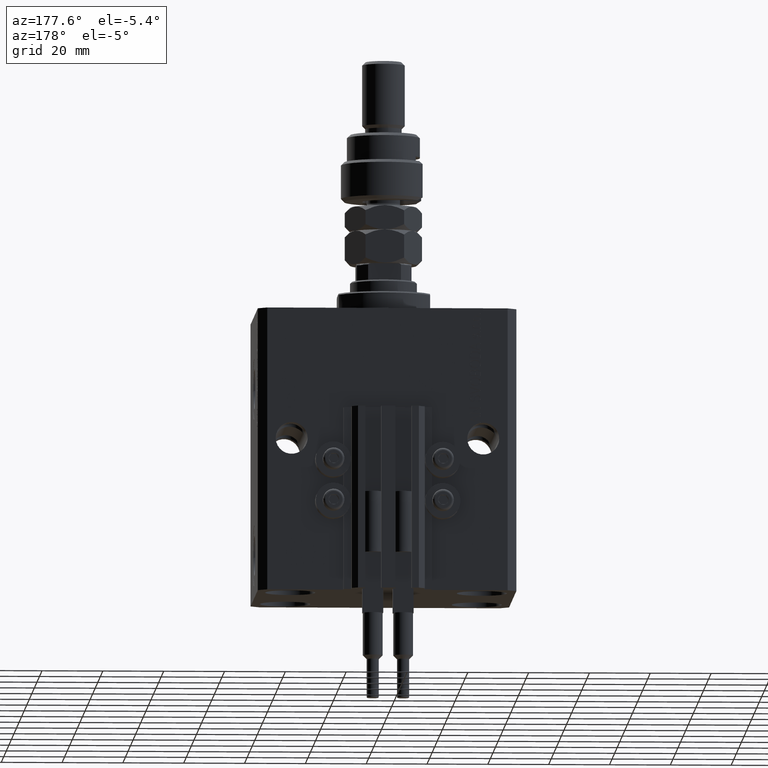
[diagram: clean part render]
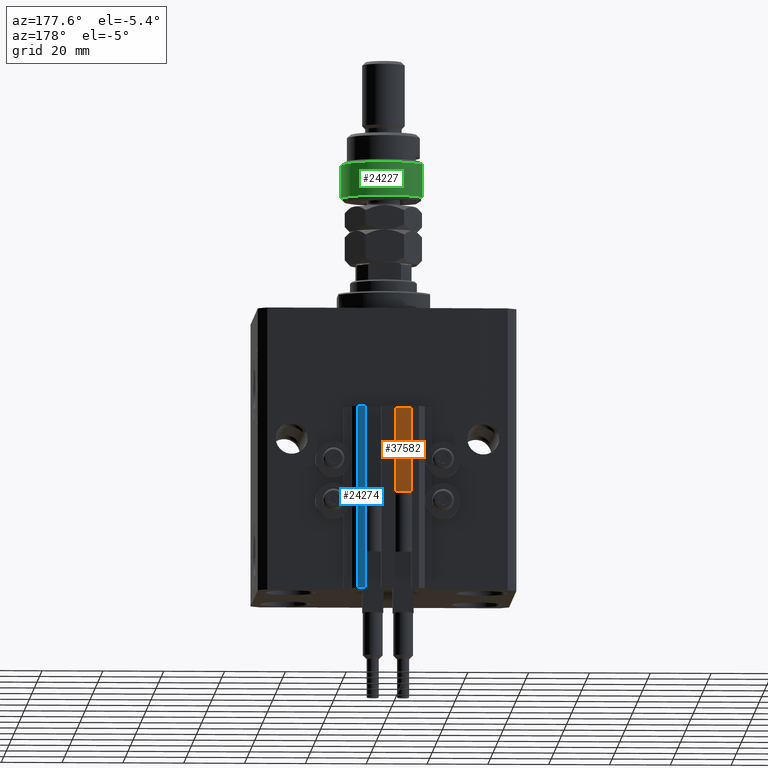
[diagram: same view with three faces highlighted in distinct colors, each labeled with its STEP entity id]
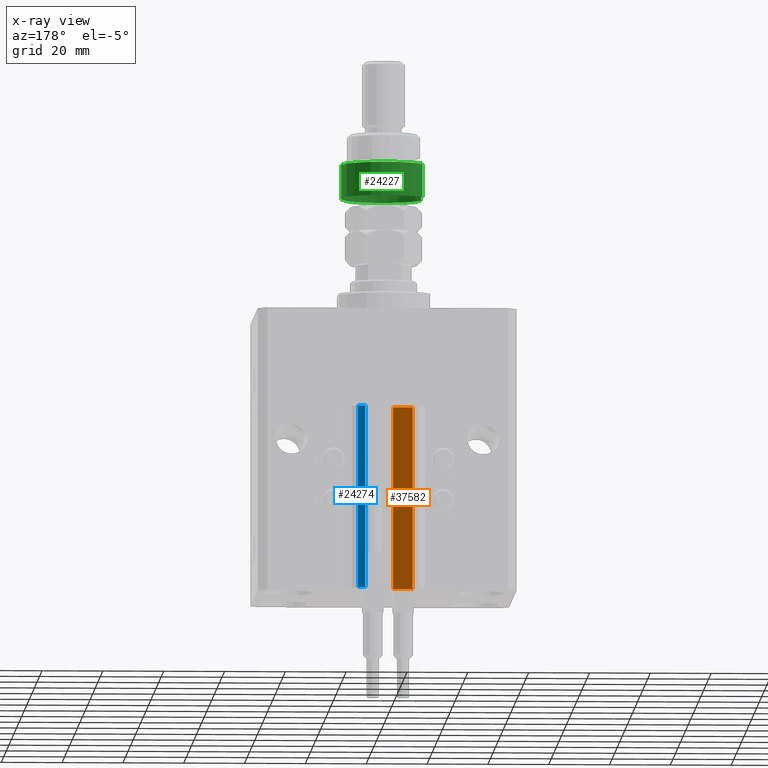
[diagram: x-ray of the same camera — body ghosted, the three highlighted faces saturated]
A machine part, auxiliary view with three faces highlighted in distinct colors.
The next image is the same camera in x-ray (body ghosted, the three faces saturated) — at least one of them is partly hidden behind the body in this view.
Their STEP definitions:

[orange] entity #37582 — the highlighted planar face has unit normal (0, 1, 0).
#1496 = AXIS2_PLACEMENT_3D ( 'NONE', #6518, #37375, #30126 ) ;
#1789 = DIRECTION ( 'NONE',  ( -1.000000000000000000, 0.000000000000000000, 0.000000000000000000 ) ) ;
#2334 = CARTESIAN_POINT ( 'NONE',  ( -1.800000000000000933, 33.50000000000000000, -93.00000000000000000 ) ) ;
#3066 = EDGE_CURVE ( 'NONE', #34076, #40881, #9385, .T. ) ;
#4939 = DIRECTION ( 'NONE',  ( 0.000000000000000000, 0.000000000000000000, 1.000000000000000000 ) ) ;
#6421 = CARTESIAN_POINT ( 'NONE',  ( -8.199999999999997513, 33.50000000000000000, -93.00000000000000000 ) ) ;
#6518 = CARTESIAN_POINT ( 'NONE',  ( -1.800000000000000933, 33.50000000000000000, -93.00000000000000000 ) ) ;
#7128 = VERTEX_POINT ( 'NONE', #40835 ) ;
#9385 = LINE ( 'NONE', #13268, #18986 ) ;
#10239 = ORIENTED_EDGE ( 'NONE', *, *, #42551, .F. ) ;
#13268 = CARTESIAN_POINT ( 'NONE',  ( -8.199999999999997513, 33.50000000000000000, -93.00000000000000000 ) ) ;
#16114 = VECTOR ( 'NONE', #1789, 1000.000000000000000 ) ;
#16940 = ORIENTED_EDGE ( 'NONE', *, *, #3066, .T. ) ;
#17356 = LINE ( 'NONE', #33187, #39765 ) ;
#17410 = DIRECTION ( 'NONE',  ( 0.000000000000000000, 0.000000000000000000, 1.000000000000000000 ) ) ;
#17852 = EDGE_CURVE ( 'NONE', #20688, #34076, #41197, .T. ) ;
#18731 = ORIENTED_EDGE ( 'NONE', *, *, #20318, .F. ) ;
#18986 = VECTOR ( 'NONE', #17410, 1000.000000000000000 ) ;
#20318 = EDGE_CURVE ( 'NONE', #7128, #40881, #35608, .T. ) ;
#20688 = VERTEX_POINT ( 'NONE', #2334 ) ;
#21473 = CARTESIAN_POINT ( 'NONE',  ( -1.800000000000000933, 33.50000000000000000, -93.00000000000000000 ) ) ;
#21815 = PLANE ( 'NONE',  #1496 ) ;
#24524 = VECTOR ( 'NONE', #40007, 1000.000000000000000 ) ;
#27897 = EDGE_LOOP ( 'NONE', ( #18731, #10239, #33360, #16940 ) ) ;
#28353 = CARTESIAN_POINT ( 'NONE',  ( -1.800000000000000933, 33.50000000000000000, -33.00000000000000000 ) ) ;
#30126 = DIRECTION ( 'NONE',  ( 0.000000000000000000, 0.000000000000000000, 1.000000000000000000 ) ) ;
#31777 = CARTESIAN_POINT ( 'NONE',  ( -8.199999999999997513, 33.50000000000000000, -33.00000000000000000 ) ) ;
#33187 = CARTESIAN_POINT ( 'NONE',  ( -1.800000000000000933, 33.50000000000000000, -93.00000000000000000 ) ) ;
#33360 = ORIENTED_EDGE ( 'NONE', *, *, #17852, .T. ) ;
#34076 = VERTEX_POINT ( 'NONE', #6421 ) ;
#35608 = LINE ( 'NONE', #28353, #24524 ) ;
#37375 = DIRECTION ( 'NONE',  ( 0.000000000000000000, 1.000000000000000000, -0.000000000000000000 ) ) ;
#37582 = ADVANCED_FACE ( 'NONE', ( #45924 ), #21815, .T. ) ;
#39765 = VECTOR ( 'NONE', #4939, 1000.000000000000000 ) ;
#40007 = DIRECTION ( 'NONE',  ( -1.000000000000000000, 0.000000000000000000, 0.000000000000000000 ) ) ;
#40835 = CARTESIAN_POINT ( 'NONE',  ( -1.800000000000000933, 33.50000000000000000, -33.00000000000000000 ) ) ;
#40881 = VERTEX_POINT ( 'NONE', #31777 ) ;
#41197 = LINE ( 'NONE', #21473, #16114 ) ;
#42551 = EDGE_CURVE ( 'NONE', #20688, #7128, #17356, .T. ) ;
#45924 = FACE_OUTER_BOUND ( 'NONE', #27897, .T. ) ;

[blue] entity #24274 — the highlighted planar face has unit normal (0, 1, 0).
#253 = ORIENTED_EDGE ( 'NONE', *, *, #37932, .T. ) ;
#2000 = DIRECTION ( 'NONE',  ( 0.000000000000000000, 0.000000000000000000, 1.000000000000000000 ) ) ;
#6410 = DIRECTION ( 'NONE',  ( 0.000000000000000000, 1.000000000000000000, -0.000000000000000000 ) ) ;
#10793 = FACE_OUTER_BOUND ( 'NONE', #22896, .T. ) ;
#13451 = CARTESIAN_POINT ( 'NONE',  ( 7.649999999999998579, 39.50000000000002132, -93.00000000000000000 ) ) ;
#13652 = PLANE ( 'NONE',  #30362 ) ;
#13879 = CARTESIAN_POINT ( 'NONE',  ( 9.999999999999998224, 39.50000000000002132, -33.00000000000000000 ) ) ;
#15248 = EDGE_CURVE ( 'NONE', #20875, #38093, #37488, .T. ) ;
#16740 = CARTESIAN_POINT ( 'NONE',  ( 9.999999999999998224, 39.50000000000002132, -93.00000000000000000 ) ) ;
#19021 = LINE ( 'NONE', #22931, #35349 ) ;
#20875 = VERTEX_POINT ( 'NONE', #49190 ) ;
#21441 = EDGE_CURVE ( 'NONE', #24162, #20875, #19021, .T. ) ;
#22896 = EDGE_LOOP ( 'NONE', ( #44620, #45087, #24280, #253 ) ) ;
#22931 = CARTESIAN_POINT ( 'NONE',  ( 9.999999999999998224, 39.50000000000002132, -93.00000000000000000 ) ) ;
#23047 = VECTOR ( 'NONE', #49492, 1000.000000000000000 ) ;
#24162 = VERTEX_POINT ( 'NONE', #44781 ) ;
#24274 = ADVANCED_FACE ( 'NONE', ( #10793 ), #13652, .T. ) ;
#24280 = ORIENTED_EDGE ( 'NONE', *, *, #36857, .T. ) ;
#28473 = VECTOR ( 'NONE', #29727, 1000.000000000000000 ) ;
#28693 = DIRECTION ( 'NONE',  ( -1.000000000000000000, 0.000000000000000000, 0.000000000000000000 ) ) ;
#29727 = DIRECTION ( 'NONE',  ( -1.000000000000000000, 0.000000000000000000, 0.000000000000000000 ) ) ;
#30362 = AXIS2_PLACEMENT_3D ( 'NONE', #41675, #6410, #2000 ) ;
#31818 = VERTEX_POINT ( 'NONE', #49475 ) ;
#35349 = VECTOR ( 'NONE', #50411, 1000.000000000000000 ) ;
#36857 = EDGE_CURVE ( 'NONE', #24162, #31818, #48390, .T. ) ;
#37488 = LINE ( 'NONE', #13879, #28473 ) ;
#37932 = EDGE_CURVE ( 'NONE', #31818, #38093, #41463, .T. ) ;
#38093 = VERTEX_POINT ( 'NONE', #44508 ) ;
#41463 = LINE ( 'NONE', #13451, #23047 ) ;
#41675 = CARTESIAN_POINT ( 'NONE',  ( 9.999999999999998224, 39.50000000000002132, -93.00000000000000000 ) ) ;
#44508 = CARTESIAN_POINT ( 'NONE',  ( 7.649999999999998579, 39.50000000000002132, -33.00000000000000000 ) ) ;
#44620 = ORIENTED_EDGE ( 'NONE', *, *, #15248, .F. ) ;
#44781 = CARTESIAN_POINT ( 'NONE',  ( 9.999999999999998224, 39.50000000000002132, -93.00000000000000000 ) ) ;
#45087 = ORIENTED_EDGE ( 'NONE', *, *, #21441, .F. ) ;
#47828 = VECTOR ( 'NONE', #28693, 1000.000000000000000 ) ;
#48390 = LINE ( 'NONE', #16740, #47828 ) ;
#49190 = CARTESIAN_POINT ( 'NONE',  ( 9.999999999999998224, 39.50000000000002132, -33.00000000000000000 ) ) ;
#49475 = CARTESIAN_POINT ( 'NONE',  ( 7.649999999999998579, 39.50000000000002132, -93.00000000000000000 ) ) ;
#49492 = DIRECTION ( 'NONE',  ( 0.000000000000000000, 0.000000000000000000, 1.000000000000000000 ) ) ;
#50411 = DIRECTION ( 'NONE',  ( 0.000000000000000000, 0.000000000000000000, 1.000000000000000000 ) ) ;

[green] entity #24227 — the highlighted cylindrical surface (partial cylindrical patch) has radius 14 mm, axis along (-0, -0, -1).
#591 = VERTEX_POINT ( 'NONE', #9739 ) ;
#1256 = DIRECTION ( 'NONE',  ( 1.000000000000000000, 0.000000000000000000, 0.000000000000000000 ) ) ;
#2254 = VERTEX_POINT ( 'NONE', #47402 ) ;
#2261 = DIRECTION ( 'NONE',  ( -0.000000000000000000, -0.000000000000000000, -1.000000000000000000 ) ) ;
#2618 = VECTOR ( 'NONE', #40549, 1000.000000000000000 ) ;
#3906 = VERTEX_POINT ( 'NONE', #7231 ) ;
#5171 = DIRECTION ( 'NONE',  ( 0.000000000000000000, 0.000000000000000000, -1.000000000000000000 ) ) ;
#7231 = CARTESIAN_POINT ( 'NONE',  ( -12.64911064067351809, 6.000000000000000000, 1.000000000000035527 ) ) ;
#9063 = CARTESIAN_POINT ( 'NONE',  ( -12.64911064067351809, 6.000000000000000000, 14.50000000000000000 ) ) ;
#9716 = AXIS2_PLACEMENT_3D ( 'NONE', #28753, #20939, #1256 ) ;
#9739 = CARTESIAN_POINT ( 'NONE',  ( -12.64911064067351809, 6.000000000000000000, 12.00000000000003553 ) ) ;
#9761 = DIRECTION ( 'NONE',  ( -1.000000000000000000, 0.000000000000000000, 0.000000000000000000 ) ) ;
#10025 = CARTESIAN_POINT ( 'NONE',  ( 0.000000000000000000, 0.000000000000000000, 13.00000000000000000 ) ) ;
#10867 = CARTESIAN_POINT ( 'NONE',  ( 14.00000000000000000, 0.000000000000000000, 1.000000000000032196 ) ) ;
#12424 = DIRECTION ( 'NONE',  ( 1.000000000000000000, 0.000000000000000000, 0.000000000000000000 ) ) ;
#12851 = ORIENTED_EDGE ( 'NONE', *, *, #24455, .T. ) ;
#12933 = AXIS2_PLACEMENT_3D ( 'NONE', #45434, #45691, #16904 ) ;
#14425 = FACE_OUTER_BOUND ( 'NONE', #43623, .T. ) ;
#15455 = CIRCLE ( 'NONE', #12933, 14.00000000000000000 ) ;
#16904 = DIRECTION ( 'NONE',  ( 1.000000000000000000, 0.000000000000000000, 0.000000000000000000 ) ) ;
#18644 = EDGE_CURVE ( 'NONE', #591, #2254, #38530, .T. ) ;
#19917 = CARTESIAN_POINT ( 'NONE',  ( -12.64911064067351809, -5.999999999999999112, 1.000000000000035527 ) ) ;
#20212 = LINE ( 'NONE', #9063, #36610 ) ;
#20939 = DIRECTION ( 'NONE',  ( -0.000000000000000000, -0.000000000000000000, 1.000000000000000000 ) ) ;
#23289 = EDGE_CURVE ( 'NONE', #33939, #3906, #36217, .T. ) ;
#23313 = VERTEX_POINT ( 'NONE', #19917 ) ;
#24227 = ADVANCED_FACE ( 'NONE', ( #14425 ), #45817, .T. ) ;
#24455 = EDGE_CURVE ( 'NONE', #23313, #33939, #15455, .T. ) ;
#24456 = AXIS2_PLACEMENT_3D ( 'NONE', #40693, #5171, #12424 ) ;
#25027 = ORIENTED_EDGE ( 'NONE', *, *, #44851, .T. ) ;
#26086 = ORIENTED_EDGE ( 'NONE', *, *, #18644, .T. ) ;
#28753 = CARTESIAN_POINT ( 'NONE',  ( 0.000000000000000000, 0.000000000000000000, 1.000000000000032196 ) ) ;
#32529 = LINE ( 'NONE', #44430, #2618 ) ;
#33939 = VERTEX_POINT ( 'NONE', #10867 ) ;
#36217 = CIRCLE ( 'NONE', #9716, 14.00000000000000000 ) ;
#36610 = VECTOR ( 'NONE', #45107, 1000.000000000000000 ) ;
#38530 = CIRCLE ( 'NONE', #24456, 14.00000000000000000 ) ;
#40549 = DIRECTION ( 'NONE',  ( -0.000000000000000000, -0.000000000000000000, -1.000000000000000000 ) ) ;
#40693 = CARTESIAN_POINT ( 'NONE',  ( 0.000000000000000000, 0.000000000000000000, 12.00000000000003553 ) ) ;
#43623 = EDGE_LOOP ( 'NONE', ( #46757, #26086, #25027, #12851, #50544 ) ) ;
#44430 = CARTESIAN_POINT ( 'NONE',  ( -12.64911064067351809, -5.999999999999999112, 14.50000000000000000 ) ) ;
#44851 = EDGE_CURVE ( 'NONE', #2254, #23313, #32529, .T. ) ;
#45107 = DIRECTION ( 'NONE',  ( -0.000000000000000000, -0.000000000000000000, -1.000000000000000000 ) ) ;
#45434 = CARTESIAN_POINT ( 'NONE',  ( 0.000000000000000000, 0.000000000000000000, 1.000000000000032196 ) ) ;
#45691 = DIRECTION ( 'NONE',  ( -0.000000000000000000, -0.000000000000000000, 1.000000000000000000 ) ) ;
#45817 = CYLINDRICAL_SURFACE ( 'NONE', #47737, 14.00000000000000000 ) ;
#46757 = ORIENTED_EDGE ( 'NONE', *, *, #49157, .F. ) ;
#47402 = CARTESIAN_POINT ( 'NONE',  ( -12.64911064067351809, -5.999999999999999112, 12.00000000000003553 ) ) ;
#47737 = AXIS2_PLACEMENT_3D ( 'NONE', #10025, #2261, #9761 ) ;
#49157 = EDGE_CURVE ( 'NONE', #591, #3906, #20212, .T. ) ;
#50544 = ORIENTED_EDGE ( 'NONE', *, *, #23289, .T. ) ;